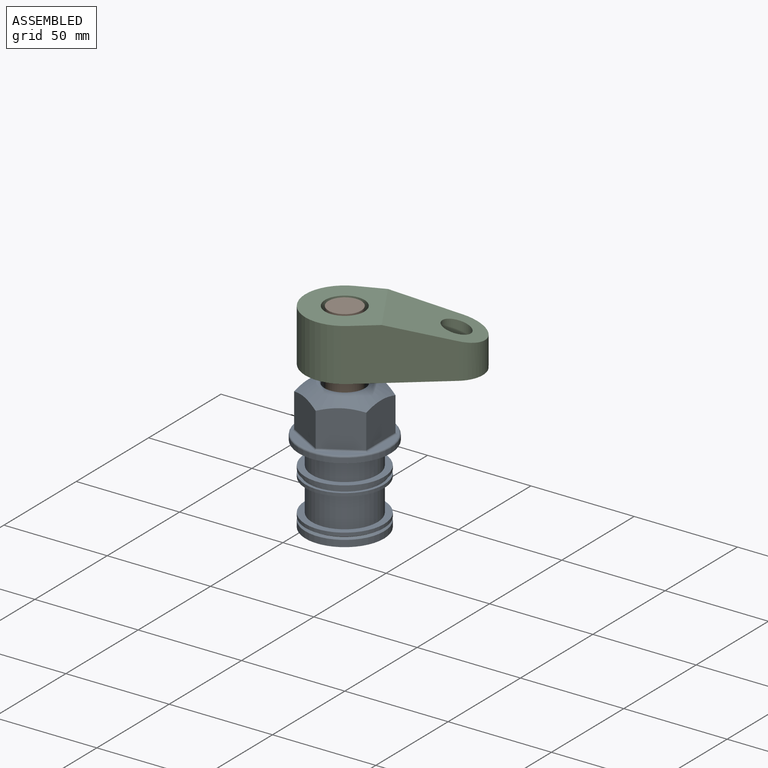
[diagram: assembled view]
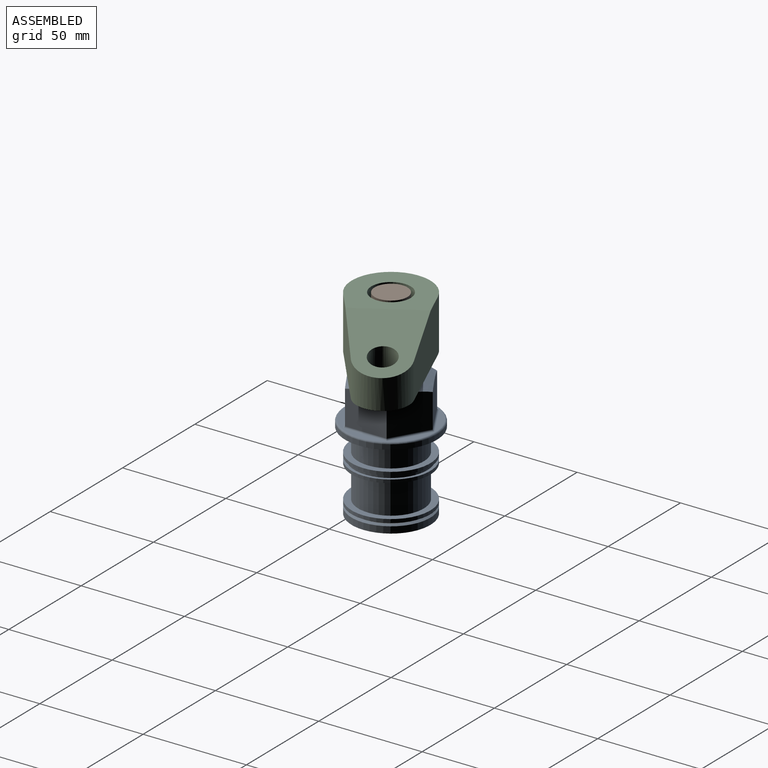
[diagram: assembled view, second angle]
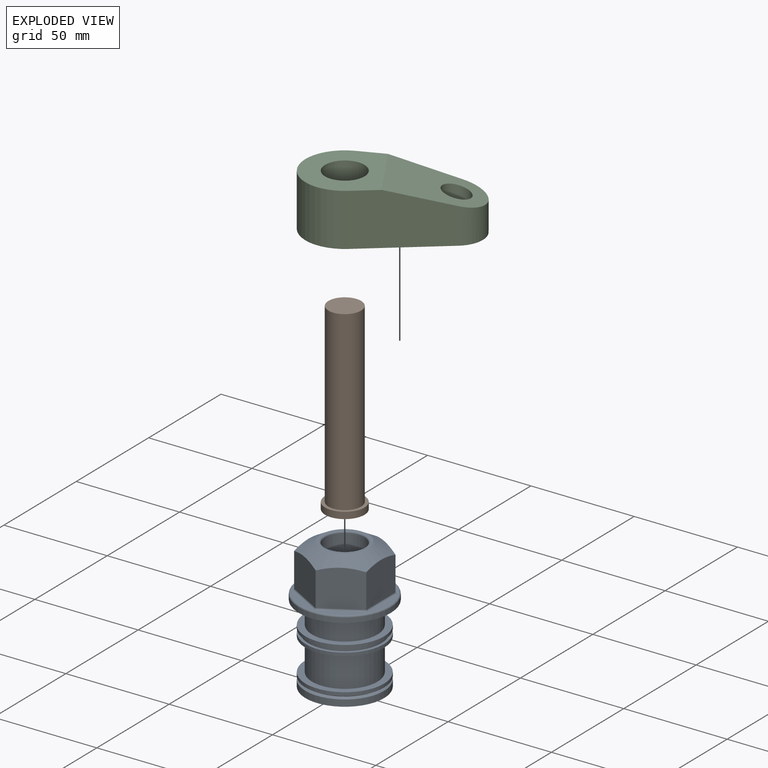
[diagram: exploded view]
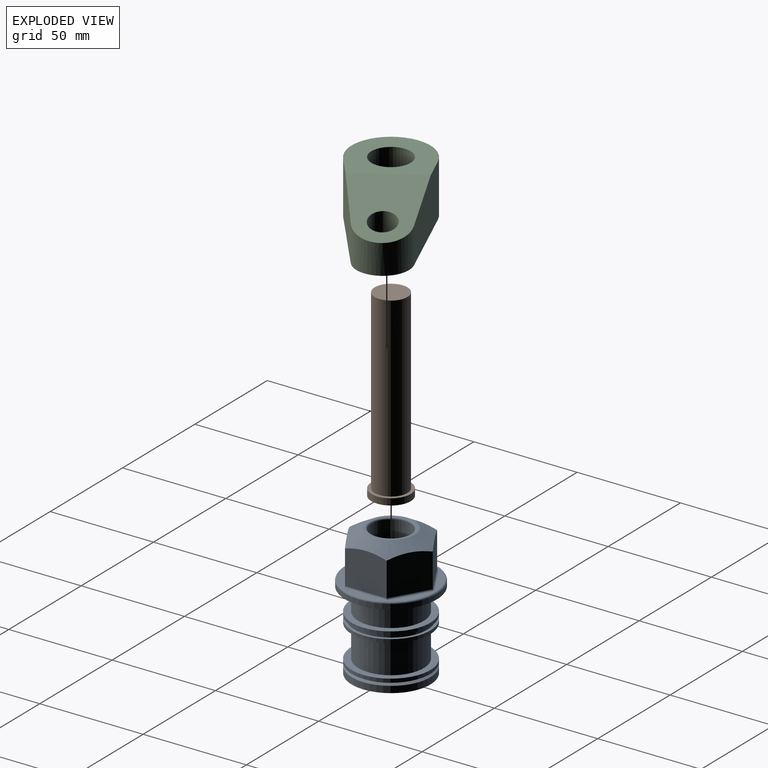
[diagram: exploded view, second angle]
ASSEMBLY  parts=3 mates=2
PART A: 36 faces, bbox 48.1x48.1x63.5 mm
  f0: plane 20.18x17.93mm, normal (-1,0,0), area 350.7mm2, adj f1,f5,f24,f32
  f1: plane 17.93x17.46mm, normal (-0.5,0.87,0), area 350.7mm2, adj f0,f2,f24,f30
  f2: plane 17.93x17.46mm, normal (0.5,0.87,0), area 350.7mm2, adj f1,f3,f24,f29
  f3: plane 20.18x17.93mm, normal (1,0,0), area 350.7mm2, adj f2,f4,f24,f31
  f4: plane 17.93x17.46mm, normal (0.5,-0.87,0), area 350.7mm2, adj f3,f5,f24,f33
  f5: plane 17.93x17.46mm, normal (-0.5,-0.87,0), area 350.7mm2, adj f0,f4,f24,f34
  f6: cylinder r=22.23mm len=44.45mm, axis (0,0,-1), area 329.9mm2, adj f7,f35
  f7: plane 44.45x44.45mm, normal (0,0,-1), area 760.1mm2, adj f6,f22
  f8: plane 38.1x38.1mm, normal (0,0,-1), area 1140.1mm2, adj f9
  f9: cylinder r=19.05mm len=38.1mm, axis (0,0,-1), area 380mm2, adj f8,f10
  f10: cone r=19.05mm half-angle=60deg, axis (0,0,-1), area 169.7mm2, adj f9,f11
  f11: cone r=17.78mm half-angle=60deg, axis (0,0,1), area 169.7mm2, adj f10,f12
  f12: cylinder r=19.05mm len=38.1mm, axis (0,0,-1), area 204.5mm2, adj f11,f13
  f13: plane 38.1x38.1mm, normal (0,0,1), area 348.4mm2, adj f12,f14
  f14: cylinder r=15.88mm len=31.75mm, axis (0,0,-1), area 1566.4mm2, adj f13,f15
  f15: plane 38.1x38.1mm, normal (0,0,-1), area 348.4mm2, adj f14,f16
  f16: cylinder r=19.05mm len=38.1mm, axis (0,0,-1), area 190mm2, adj f15,f17
  f17: plane 38.1x38.1mm, normal (0,0,1), area 161.1mm2, adj f16,f18
  f18: cylinder r=17.65mm len=35.31mm, axis (0,0,-1), area 197.2mm2, adj f17,f19
  f19: plane 38.1x38.1mm, normal (0,0,-1), area 161.1mm2, adj f18,f20
  f20: cylinder r=19.05mm len=38.1mm, axis (0,0,-1), area 190mm2, adj f19,f21
  f21: plane 38.1x38.1mm, normal (0,0,1), area 348.4mm2, adj f20,f22
  f22: cylinder r=15.88mm len=31.75mm, axis (0,0,-1), area 1106.5mm2, adj f7,f21
  f23: plane 42.82x42.82mm, normal (0,0,1), area 283.4mm2, adj f29,f30,f31,f32,f33,f34,f35
  f24: cone r=11.43mm half-angle=60deg, axis (0,0,-1), area 745.8mm2, adj f0,f1,f2,f3,f4,f5,f28
  f25: plane 19.05x19.05mm, normal (0,0,1), area 285mm2, adj f26
  f26: cylinder r=9.53mm len=56.34mm, axis (0,0,-1), area 3371.6mm2, adj f25,f27
  f27: torus R=10.34mm, axis (0,0,1), area 78.8mm2, adj f26,f28
  f28: plane 22.86x22.86mm, normal (0,0,1), area 74.7mm2, adj f24,f27
  f29: cylinder r=0.81mm len=18.68mm, axis (0.87,-0.5,0), area 26.3mm2, adj f2,f23,f30,f31
  f30: cylinder r=0.81mm len=18.68mm, axis (0.87,0.5,0), area 26.3mm2, adj f1,f23,f29,f32
  f31: cylinder r=0.81mm len=21.1mm, axis (0,-1,0), area 26.3mm2, adj f3,f23,f29,f33
  f32: cylinder r=0.81mm len=21.1mm, axis (0,1,0), area 26.3mm2, adj f0,f23,f30,f34
  f33: cylinder r=0.81mm len=18.68mm, axis (-0.87,-0.5,0), area 26.3mm2, adj f4,f23,f31,f34
  f34: cylinder r=0.81mm len=18.68mm, axis (-0.87,0.5,0), area 26.3mm2, adj f5,f23,f32,f33
  f35: torus R=21.41mm, axis (0,0,1), area 175.9mm2, adj f6,f23
PART B: 5 faces, bbox 19.1x19.1x88.9 mm
  f0: cylinder r=9.53mm len=19.05mm, axis (0,0,-1), area 190mm2, adj f1,f3
  f1: plane 19.05x19.05mm, normal (0,0,-1), area 285mm2, adj f0
  f2: cylinder r=7.94mm len=85.73mm, axis (0,0,1), area 4275.3mm2, adj f3,f4
  f3: plane 19.05x19.05mm, normal (0,0,1), area 87.1mm2, adj f0,f2
  f4: plane 15.88x15.88mm, normal (0,0,1), area 197.9mm2, adj f2
PART C: 9 faces, bbox 76.9x38.8x26.1 mm
  f0: cylinder r=12.7mm len=25.14mm, axis (0,0,-1), area 558.3mm2, adj f1,f3,f6,f7
  f1: plane 43.54x25.4mm, normal (0.14,0.99,0), area 992.9mm2, adj f0,f2,f5,f6,f7
  f2: cylinder r=19.05mm len=38.1mm, axis (0,0,-1), area 1658.8mm2, adj f1,f3,f5,f6
  f3: plane 43.54x25.4mm, normal (0.14,-0.99,0), area 992.9mm2, adj f0,f2,f5,f6,f7
  f4: cylinder r=9.53mm len=25.4mm, axis (0,0,-1), area 1520.1mm2, adj f5,f6
  f5: plane 38.1x34.98mm, normal (0,0,1), area 861.1mm2, adj f1,f2,f3,f4,f7
  f6: plane 76.2x38.1mm, normal (0,0,-1), area 1837.4mm2, adj f0,f1,f2,f3,f4,f8
  f7: plane 41.94x34.61mm, normal (0.26,0,0.97), area 1010.7mm2, adj f0,f1,f3,f5,f8
  f8: cylinder r=6.35mm len=19.46mm, axis (0,0,-1), area 708.5mm2, adj f6,f7
PLACE A at identity
PLACE B rot(axis=(0,0,1),180deg) t=(0,0,7.83)mm
PLACE C rot(axis=(0,0,1),30.8deg) t=(0,0,71.33)mm
MATE revolute B.f2 <-> C.f4  axis (0,0,1) through (0,0,96.73)mm
MATE cylindrical A.f6 <-> B.f2  axis (0,0,1) through (0,0,63.5)mm
